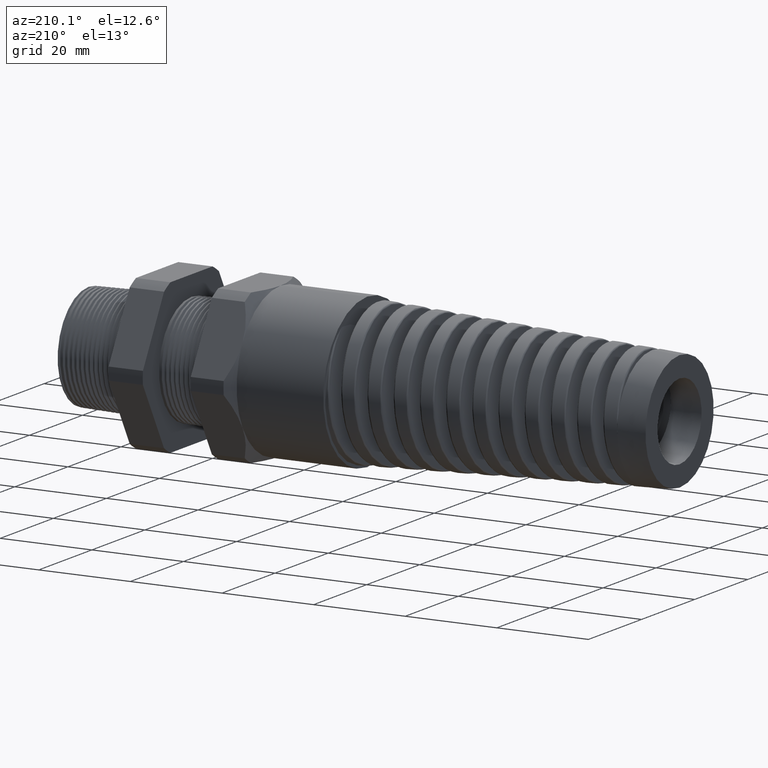
[diagram: clean part render]
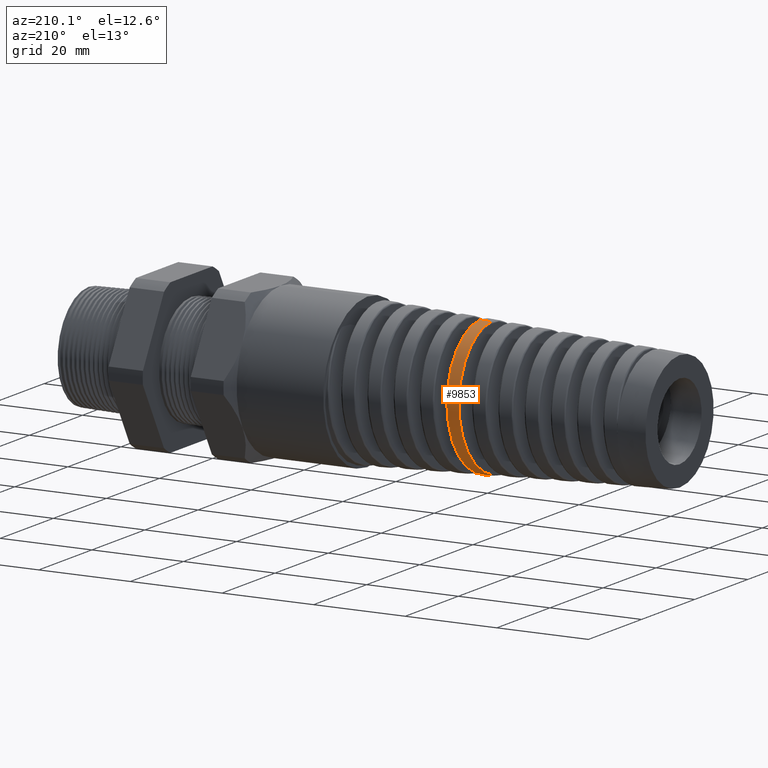
[diagram: same view with one face highlighted and labeled with its STEP entity id]
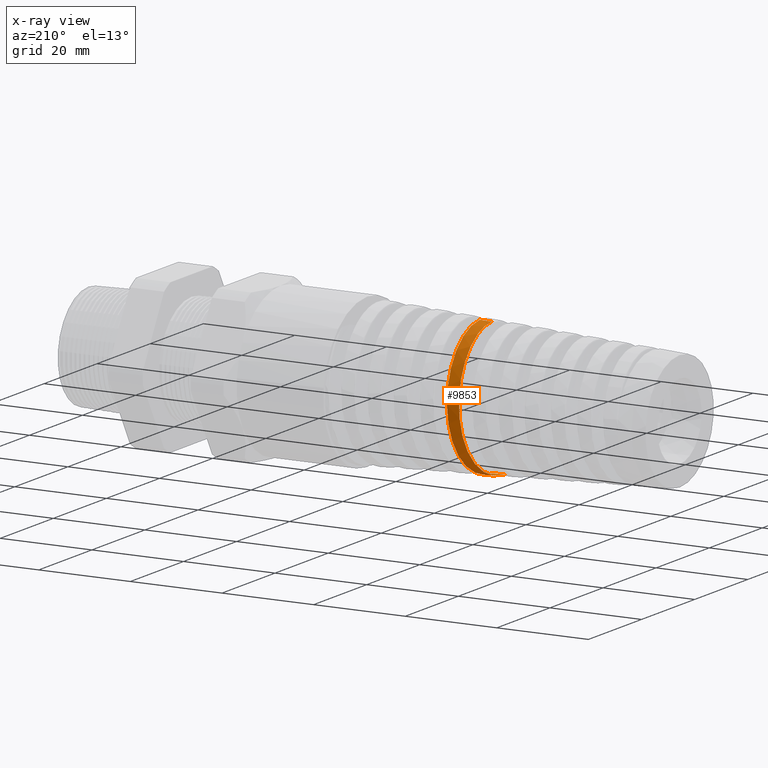
[diagram: x-ray of the same camera — body ghosted, the highlighted face saturated]
A machine part, auxiliary view. The second image highlights one B-rep face of the part: STEP entity #9853.
The next image is the same camera in x-ray: the body ghosted, the highlighted face saturated — about 0% of this face is hidden behind the body in this view.
In plain terms, the highlighted conical surface has half-angle 2.5 deg.
Its self-contained STEP definition (entity closure, byte-faithful):
#9853 = ADVANCED_FACE ( 'NONE', ( #15054 ), #15053, .T. ) ;
#9854 = EDGE_LOOP ( 'NONE', ( #9855, #9912, #9915, #9918 ) ) ;
#9855 = ORIENTED_EDGE ( 'NONE', *, *, #9856, .T. ) ;
#9856 = EDGE_CURVE ( 'NONE', #9857, #9858, #15133, .T. ) ;
#9857 = VERTEX_POINT ( 'NONE', #15134 ) ;
#9858 = VERTEX_POINT ( 'NONE', #15132 ) ;
#9912 = ORIENTED_EDGE ( 'NONE', *, *, #9913, .T. ) ;
#9913 = EDGE_CURVE ( 'NONE', #9858, #9914, #15537, .T. ) ;
#9914 = VERTEX_POINT ( 'NONE', #15533 ) ;
#9915 = ORIENTED_EDGE ( 'NONE', *, *, #9916, .T. ) ;
#9916 = EDGE_CURVE ( 'NONE', #9914, #9917, #15615, .T. ) ;
#9917 = VERTEX_POINT ( 'NONE', #15643 ) ;
#9918 = ORIENTED_EDGE ( 'NONE', *, *, #9919, .F. ) ;
#9919 = EDGE_CURVE ( 'NONE', #9857, #9917, #15642, .T. ) ;
#15049 = DIRECTION ( 'NONE',  ( 0.0000000000000000000, 0.0000000000000000000, -1.000000000000000000 ) ) ;
#15050 = DIRECTION ( 'NONE',  ( 1.000000000000000000, 0.0000000000000000000, 0.0000000000000000000 ) ) ;
#15051 = CARTESIAN_POINT ( 'NONE',  ( -1.530000000000000200, 0.0000000000000000000, 0.0000000000000000000 ) ) ;
#15052 = AXIS2_PLACEMENT_3D ( 'NONE', #15051, #15050, #15049 ) ;
#15053 = CONICAL_SURFACE ( 'NONE', #15052, 0.6499999999999999100, 0.04363323129985850100 ) ;
#15054 = FACE_OUTER_BOUND ( 'NONE', #9854, .T. ) ;
#15088 = CARTESIAN_POINT ( 'NONE',  ( -3.193735983489176500, 0.1488776334188238200, 0.5581539775293554700 ) ) ;
#15089 = CARTESIAN_POINT ( 'NONE',  ( -3.196031313421669600, 0.1849811690392735900, 0.5471441015258911000 ) ) ;
#15090 = CARTESIAN_POINT ( 'NONE',  ( -3.197170333532149700, 0.2026570252111365400, 0.5407887388172063500 ) ) ;
#15091 = CARTESIAN_POINT ( 'NONE',  ( -3.200581468389550400, 0.2545788598149732500, 0.5192240886653570800 ) ) ;
#15092 = CARTESIAN_POINT ( 'NONE',  ( -3.202850791321138600, 0.2877682487748397500, 0.5015149658007639300 ) ) ;
#15093 = CARTESIAN_POINT ( 'NONE',  ( -3.207466680046581400, 0.3509255905701381100, 0.4592891698484713500 ) ) ;
#15094 = CARTESIAN_POINT ( 'NONE',  ( -3.209743078020062400, 0.3799257229976644200, 0.4354302892263729500 ) ) ;
#15095 = CARTESIAN_POINT ( 'NONE',  ( -3.213170269051639900, 0.4197037565999503000, 0.3956832862273195200 ) ) ;
#15096 = CARTESIAN_POINT ( 'NONE',  ( -3.214314455633493900, 0.4323382182123478600, 0.3817696664539385100 ) ) ;
#15097 = CARTESIAN_POINT ( 'NONE',  ( -3.216613383475079400, 0.4563273952824487000, 0.3525819179147215400 ) ) ;
#15098 = CARTESIAN_POINT ( 'NONE',  ( -3.217771069217822100, 0.4676980589073698700, 0.3372646917033178000 ) ) ;
#15099 = CARTESIAN_POINT ( 'NONE',  ( -3.221206517634054300, 0.4991340820762861800, 0.2902538923896876800 ) ) ;
#15100 = CARTESIAN_POINT ( 'NONE',  ( -3.223471668604281700, 0.5168191492201775800, 0.2572137508945312500 ) ) ;
#15101 = CARTESIAN_POINT ( 'NONE',  ( -3.226906102795239900, 0.5384708442904236900, 0.2051261220092608600 ) ) ;
#15102 = CARTESIAN_POINT ( 'NONE',  ( -3.228061282309700400, 0.5448902526896944900, 0.1872700391274540700 ) ) ;
#15103 = CARTESIAN_POINT ( 'NONE',  ( -3.230374596830250400, 0.5559323089784240500, 0.1509914150398839700 ) ) ;
#15104 = CARTESIAN_POINT ( 'NONE',  ( -3.231523363628938200, 0.5605173691355085400, 0.1327188366943572500 ) ) ;
#15105 = CARTESIAN_POINT ( 'NONE',  ( -3.234959070542712900, 0.5715498896529454000, 0.07751420444231302300 ) ) ;
#15106 = CARTESIAN_POINT ( 'NONE',  ( -3.237230742128787100, 0.5753006085543007600, 0.04019864104263856700 ) ) ;
#15107 = CARTESIAN_POINT ( 'NONE',  ( -3.240683536255856400, 0.5753827234982713500, -0.01655838119316726400 ) ) ;
#15108 = CARTESIAN_POINT ( 'NONE',  ( -3.241841074921878900, 0.5744663883830816200, -0.03558475736276716500 ) ) ;
#15109 = CARTESIAN_POINT ( 'NONE',  ( -3.244134250515415800, 0.5708102049986358800, -0.07306458614169215900 ) ) ;
#15110 = CARTESIAN_POINT ( 'NONE',  ( -3.246418317212138600, 0.5653359132366506700, -0.1101825293599066100 ) ) ;
#15111 = CARTESIAN_POINT ( 'NONE',  ( -3.248707004184773400, 0.5562782285104606000, -0.1465858048591639200 ) ) ;
#15112 = CARTESIAN_POINT ( 'NONE',  ( -3.251007717626653600, 0.5454035857536202500, -0.1826261030976976400 ) ) ;
#15113 = CARTESIAN_POINT ( 'NONE',  ( -3.252170327041759000, 0.5390169455420613700, -0.2005584794949860400 ) ) ;
#15114 = CARTESIAN_POINT ( 'NONE',  ( -3.255639280797836900, 0.5173345951876795500, -0.2530386299960891700 ) ) ;
#15115 = CARTESIAN_POINT ( 'NONE',  ( -3.257912058200116900, 0.4996590468686441000, -0.2861216005626154900 ) ) ;
#15116 = CARTESIAN_POINT ( 'NONE',  ( -3.261341913105340900, 0.4684392355167658100, -0.3329583256678449500 ) ) ;
#15117 = CARTESIAN_POINT ( 'NONE',  ( -3.262488601925199700, 0.4572426018040998100, -0.3481026245639063900 ) ) ;
#15118 = CARTESIAN_POINT ( 'NONE',  ( -3.264801700904190100, 0.4332206457199057100, -0.3774256287676425200 ) ) ;
#15119 = CARTESIAN_POINT ( 'NONE',  ( -3.265960408731694900, 0.4204693077899808700, -0.3914998945269594900 ) ) ;
#15120 = CARTESIAN_POINT ( 'NONE',  ( -3.269410330554007000, 0.3805840303101307200, -0.4314052938015283700 ) ) ;
#15121 = CARTESIAN_POINT ( 'NONE',  ( -3.271696274678492300, 0.3516303717419407800, -0.4551947071049360400 ) ) ;
#15122 = CARTESIAN_POINT ( 'NONE',  ( -3.276304603785762400, 0.2889673268123521500, -0.4971047171244297700 ) ) ;
#15123 = CARTESIAN_POINT ( 'NONE',  ( -3.278639851952730200, 0.2550088553216102200, -0.5152361202335205000 ) ) ;
#15124 = CARTESIAN_POINT ( 'NONE',  ( -3.283241150878046800, 0.1853322826775813700, -0.5439846238256730300 ) ) ;
#15125 = CARTESIAN_POINT ( 'NONE',  ( -3.285521617016660100, 0.1494547346255867300, -0.5548076289725428800 ) ) ;
#15126 = CARTESIAN_POINT ( 'NONE',  ( -3.288979391242658100, 0.09409074249773466400, -0.5657389088418781600 ) ) ;
#15127 = CARTESIAN_POINT ( 'NONE',  ( -3.290143410723236400, 0.07528752412979310100, -0.5684999699184443100 ) ) ;
#15128 = CARTESIAN_POINT ( 'NONE',  ( -3.292466295058812200, 0.03756942285094549300, -0.5721299841603287900 ) ) ;
#15129 = CARTESIAN_POINT ( 'NONE',  ( -3.293618337014712100, 0.01876031979714146800, -0.5729987604751952700 ) ) ;
#15130 = CARTESIAN_POINT ( 'NONE',  ( -3.294765793735067800, 3.237012489142617100E-015, -0.5729486614328376200 ) ) ;
#15132 = CARTESIAN_POINT ( 'NONE',  ( -3.184586198583245300, -2.711981858888713100E-015, 0.5777592064464444100 ) ) ;
#15133 = B_SPLINE_CURVE_WITH_KNOTS ( 'NONE', 3,
 ( #15130, #15129, #15128, #15127, #15126, #15125, #15124, #15123, #15122, #15121, #15120, #15119, #15118, #15117, #15116, #15115, #15114, #15113, #15112, #15111, #15110, #15109, #15108, #15107, #15106, #15105, #15104, #15103, #15102, #15101, #15100, #15099, #15098, #15097, #15096, #15095, #15094, #15093, #15092, #15091, #15090, #15089, #15088, #15170, #15169, #15168, #15167 ),
 .UNSPECIFIED., .F., .F.,
 ( 4, 2, 2, 2, 2, 2, 2, 2, 2, 2, 1, 2, 2, 2, 2, 2, 2, 2, 2, 2, 2, 2, 2, 4 ),
 ( 0.5054769816814973500, 0.5069239822527564800, 0.5083709828240154900, 0.5112649839665337500, 0.5141589851090518900, 0.5170529862515700300, 0.5184999868228291600, 0.5199469873940882900, 0.5228409885366064300, 0.5242879891078655600, 0.5257349896791246900, 0.5271819902503837000, 0.5286289908216428300, 0.5315229919641610800, 0.5329699925354201000, 0.5344169931066792300, 0.5373109942491974800, 0.5387579948204565000, 0.5402049953917156300, 0.5430989965342338800, 0.5459929976767520200, 0.5474399982480111500, 0.5488869988192702800, 0.5517809999617884200 ),
 .UNSPECIFIED. ) ;
#15134 = CARTESIAN_POINT ( 'NONE',  ( -3.294765793735067800, 3.237012489142617100E-015, -0.5729486614328376200 ) ) ;
#15167 = CARTESIAN_POINT ( 'NONE',  ( -3.184586198583245300, -2.711981858888713100E-015, 0.5777592064464444100 ) ) ;
#15168 = CARTESIAN_POINT ( 'NONE',  ( -3.186864825174003300, 0.03758018301795807600, 0.5776597194609557300 ) ) ;
#15169 = CARTESIAN_POINT ( 'NONE',  ( -3.189131537068522300, 0.07487335502955930200, 0.5739288107690150300 ) ) ;
#15170 = CARTESIAN_POINT ( 'NONE',  ( -3.192575683524953700, 0.1303732893484644300, 0.5628157061316478900 ) ) ;
#15295 = CARTESIAN_POINT ( 'NONE',  ( -3.184790788981085800, 0.1506715376336412400, -0.5590538466715165900 ) ) ;
#15297 = CARTESIAN_POINT ( 'NONE',  ( -3.182509340106826300, 0.1868338811743069100, -0.5481221890213203700 ) ) ;
#15298 = CARTESIAN_POINT ( 'NONE',  ( -3.179068107536814600, 0.2393489239265256800, -0.5264549656187494900 ) ) ;
#15533 = CARTESIAN_POINT ( 'NONE',  ( -3.084158053451133300, -4.810694140117820800E-013, 0.5821439939574653000 ) ) ;
#15534 = DIRECTION ( 'NONE',  ( 0.9990482215818576900, 5.341834311772755600E-018, 0.04361938736533626400 ) ) ;
#15535 = VECTOR ( 'NONE', #15534, 39.37007874015748100 ) ;
#15536 = CARTESIAN_POINT ( 'NONE',  ( -1.530000000000000200, 7.960204194457794200E-017, 0.6499999999999999100 ) ) ;
#15537 = LINE ( 'NONE', #15536, #15535 ) ;
#15572 = CARTESIAN_POINT ( 'NONE',  ( -3.177917198350682000, 0.2565882493756648800, -0.5183349154725720400 ) ) ;
#15573 = CARTESIAN_POINT ( 'NONE',  ( -3.175605062632781200, 0.2903633088961353200, -0.5003143829183524000 ) ) ;
#15574 = CARTESIAN_POINT ( 'NONE',  ( -3.174459512008667600, 0.3066663416552873900, -0.4905412258818963600 ) ) ;
#15575 = CARTESIAN_POINT ( 'NONE',  ( -3.171033331909545200, 0.3538801885979823100, -0.4590110948240833700 ) ) ;
#15576 = CARTESIAN_POINT ( 'NONE',  ( -3.168762694775497200, 0.3831116575968204200, -0.4350642409710675500 ) ) ;
#15577 = CARTESIAN_POINT ( 'NONE',  ( -3.165306211408564600, 0.4235257670106534200, -0.3946742524033917100 ) ) ;
#15578 = CARTESIAN_POINT ( 'NONE',  ( -3.164143833876422300, 0.4364320329935218500, -0.3804282997234023100 ) ) ;
#15579 = CARTESIAN_POINT ( 'NONE',  ( -3.161844120928567000, 0.4605184059519770200, -0.3510521622502176300 ) ) ;
#15580 = CARTESIAN_POINT ( 'NONE',  ( -3.160700436857085000, 0.4717762668697898500, -0.3358506136581158600 ) ) ;
#15581 = CARTESIAN_POINT ( 'NONE',  ( -3.158418271027961600, 0.4927483245102836100, -0.3044387043821794600 ) ) ;
#15582 = CARTESIAN_POINT ( 'NONE',  ( -3.157279898677061200, 0.5024624920430724700, -0.2882283166982459500 ) ) ;
#15583 = CARTESIAN_POINT ( 'NONE',  ( -3.154994508284011600, 0.5203293937420422300, -0.2547881249791203500 ) ) ;
#15584 = CARTESIAN_POINT ( 'NONE',  ( -3.153842456933131800, 0.5285138414498707900, -0.2374794661386870300 ) ) ;
#15585 = CARTESIAN_POINT ( 'NONE',  ( -3.150389055308146600, 0.5504029498538453000, -0.1845239572850754200 ) ) ;
#15586 = CARTESIAN_POINT ( 'NONE',  ( -3.148118194705172600, 0.5613198981802654000, -0.1483149644094866300 ) ) ;
#15587 = CARTESIAN_POINT ( 'NONE',  ( -3.144691272777557800, 0.5723525207005328900, -0.09268972308534409500 ) ) ;
#15588 = CARTESIAN_POINT ( 'NONE',  ( -3.143545798040273000, 0.5751331408401666500, -0.07392774757088348100 ) ) ;
#15589 = CARTESIAN_POINT ( 'NONE',  ( -3.141239756179899700, 0.5788502758821541000, -0.03595153400939614400 ) ) ;
#15590 = CARTESIAN_POINT ( 'NONE',  ( -3.140082794875055100, 0.5797694776187128900, -0.01679069406021853300 ) ) ;
#15591 = CARTESIAN_POINT ( 'NONE',  ( -3.136652923006100700, 0.5797053098803330900, 0.04011909538677026900 ) ) ;
#15592 = CARTESIAN_POINT ( 'NONE',  ( -3.134393460357975100, 0.5759737625955767500, 0.07770273357391790900 ) ) ;
#15593 = CARTESIAN_POINT ( 'NONE',  ( -3.130966157150826900, 0.5648397596012959500, 0.1335387258215030600 ) ) ;
#15594 = CARTESIAN_POINT ( 'NONE',  ( -3.129811040553751600, 0.5601654326607383700, 0.1521614390949004600 ) ) ;
#15595 = CARTESIAN_POINT ( 'NONE',  ( -3.127512172124688600, 0.5490619031313678200, 0.1886422870008325500 ) ) ;
#15596 = CARTESIAN_POINT ( 'NONE',  ( -3.126369604709661000, 0.5426513457521891000, 0.2064847240375728100 ) ) ;
#15597 = CARTESIAN_POINT ( 'NONE',  ( -3.122947503772009400, 0.5209114487738771800, 0.2588486930506429000 ) ) ;
#15598 = CARTESIAN_POINT ( 'NONE',  ( -3.120675229882445400, 0.5030978628779807500, 0.2922181187573361100 ) ) ;
#15599 = CARTESIAN_POINT ( 'NONE',  ( -3.117227321946460300, 0.4712306813177557500, 0.3398817088608554500 ) ) ;
#15600 = CARTESIAN_POINT ( 'NONE',  ( -3.116079899295396900, 0.4598266748660135800, 0.3552314959146610800 ) ) ;
#15601 = CARTESIAN_POINT ( 'NONE',  ( -3.113802730537068800, 0.4357664486963248600, 0.3845166822628001100 ) ) ;
#15602 = CARTESIAN_POINT ( 'NONE',  ( -3.111534688767640500, 0.4103752978189711400, 0.4125066699517440100 ) ) ;
#15603 = CARTESIAN_POINT ( 'NONE',  ( -3.109260312702327100, 0.3823515810836042300, 0.4379327007349088100 ) ) ;
#15604 = CARTESIAN_POINT ( 'NONE',  ( -3.106971768001940400, 0.3529883314190622700, 0.4620531857397131600 ) ) ;
#15605 = CARTESIAN_POINT ( 'NONE',  ( -3.105814296835160500, 0.3375496747918666500, 0.4735127691372209600 ) ) ;
#15606 = CARTESIAN_POINT ( 'NONE',  ( -3.102371744319520000, 0.2900636876371739400, 0.5052517583413270700 ) ) ;
#15607 = CARTESIAN_POINT ( 'NONE',  ( -3.100108519991390000, 0.2567423703616814600, 0.5230653837199302800 ) ) ;
#15608 = CARTESIAN_POINT ( 'NONE',  ( -3.096700864921500900, 0.2043128820116578700, 0.5448566446800701100 ) ) ;
#15609 = CARTESIAN_POINT ( 'NONE',  ( -3.095562025134981400, 0.1864256648027728900, 0.5512931158702097900 ) ) ;
#15610 = CARTESIAN_POINT ( 'NONE',  ( -3.093264846190227700, 0.1498021969954104500, 0.5624541000396089400 ) ) ;
#15611 = CARTESIAN_POINT ( 'NONE',  ( -3.092122902307719500, 0.1313280787766903700, 0.5670964194549322800 ) ) ;
#15612 = CARTESIAN_POINT ( 'NONE',  ( -3.088710456428177300, 0.07562791385484829400, 0.5782515538164305600 ) ) ;
#15613 = CARTESIAN_POINT ( 'NONE',  ( -3.086447237881188200, 0.03804202459226433500, 0.5820440460067890500 ) ) ;
#15614 = CARTESIAN_POINT ( 'NONE',  ( -3.084158053451133300, -4.810694140117820800E-013, 0.5821439939574653000 ) ) ;
#15615 = B_SPLINE_CURVE_WITH_KNOTS ( 'NONE', 3,
 ( #15614, #15613, #15612, #15611, #15610, #15609, #15608, #15607, #15606, #15605, #15604, #15603, #15602, #15601, #15600, #15599, #15598, #15597, #15596, #15595, #15594, #15593, #15592, #15591, #15590, #15589, #15588, #15587, #15586, #15585, #15584, #15583, #15582, #15581, #15580, #15579, #15578, #15577, #15576, #15575, #15574, #15573, #15572, #15298, #15297, #15295, #15648, #15647, #15646, #15645, #15644 ),
 .UNSPECIFIED., .F., .F.,
 ( 4, 2, 2, 2, 2, 2, 1, 2, 2, 2, 2, 2, 2, 2, 2, 2, 2, 2, 2, 2, 2, 2, 2, 2, 2, 4 ),
 ( 0.4245527956882397800, 0.4274751554258395800, 0.4289363352946394300, 0.4303975151634393300, 0.4333198749010391300, 0.4347810547698389700, 0.4362422346386388700, 0.4377034145074387700, 0.4391645943762386700, 0.4420869541138384200, 0.4435481339826383200, 0.4450093138514382200, 0.4479316735890380200, 0.4493928534578379200, 0.4508540333266377600, 0.4537763930642375600, 0.4552375729330374600, 0.4566987528018373600, 0.4581599326706372000, 0.4596211125394371000, 0.4625434722770368500, 0.4640046521458367500, 0.4654658320146366500, 0.4683881917522364500, 0.4698493716210362900, 0.4713105514898361900 ),
 .UNSPECIFIED. ) ;
#15639 = DIRECTION ( 'NONE',  ( 0.9990482215818576900, 0.0000000000000000000, -0.04361938736533626400 ) ) ;
#15640 = VECTOR ( 'NONE', #15639, 39.37007874015748100 ) ;
#15641 = CARTESIAN_POINT ( 'NONE',  ( -1.530000000000000200, 0.0000000000000000000, -0.6499999999999999100 ) ) ;
#15642 = LINE ( 'NONE', #15641, #15640 ) ;
#15643 = CARTESIAN_POINT ( 'NONE',  ( -3.193992204935517600, 2.317044770717647200E-016, -0.5773485313401007800 ) ) ;
#15644 = CARTESIAN_POINT ( 'NONE',  ( -3.193992204935517600, 2.317044770717647200E-016, -0.5773485313401007800 ) ) ;
#15645 = CARTESIAN_POINT ( 'NONE',  ( -3.192850654155788600, 0.01888735809371385300, -0.5773983725235218900 ) ) ;
#15646 = CARTESIAN_POINT ( 'NONE',  ( -3.191708335339841400, 0.03779404927936889200, -0.5765237051103221400 ) ) ;
#15647 = CARTESIAN_POINT ( 'NONE',  ( -3.189409117773472200, 0.07564607065975556500, -0.5728888114055097300 ) ) ;
#15648 = CARTESIAN_POINT ( 'NONE',  ( -3.188246819759073900, 0.09467766215366368900, -0.5701044804117115800 ) ) ;